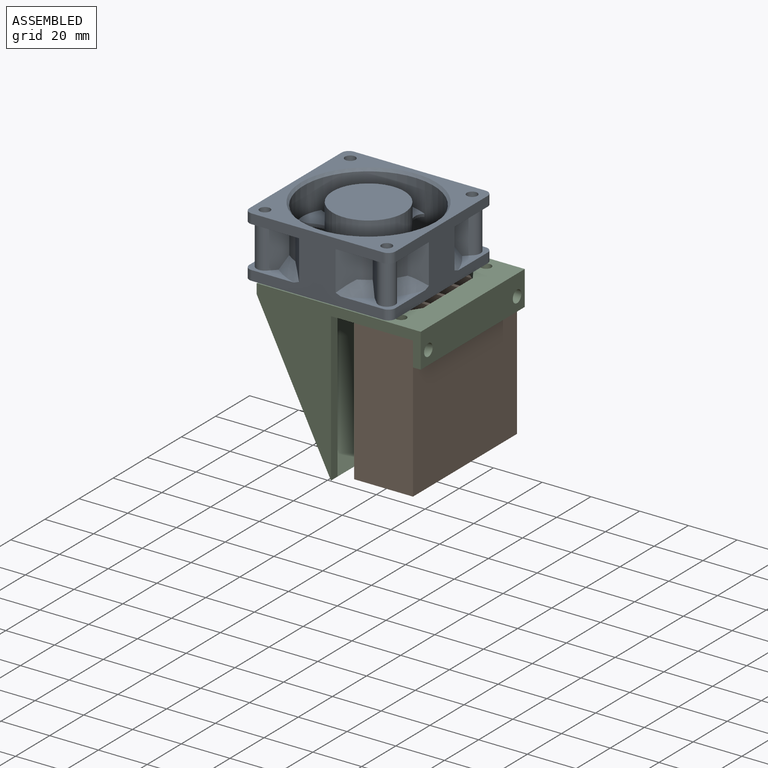
[diagram: assembled view]
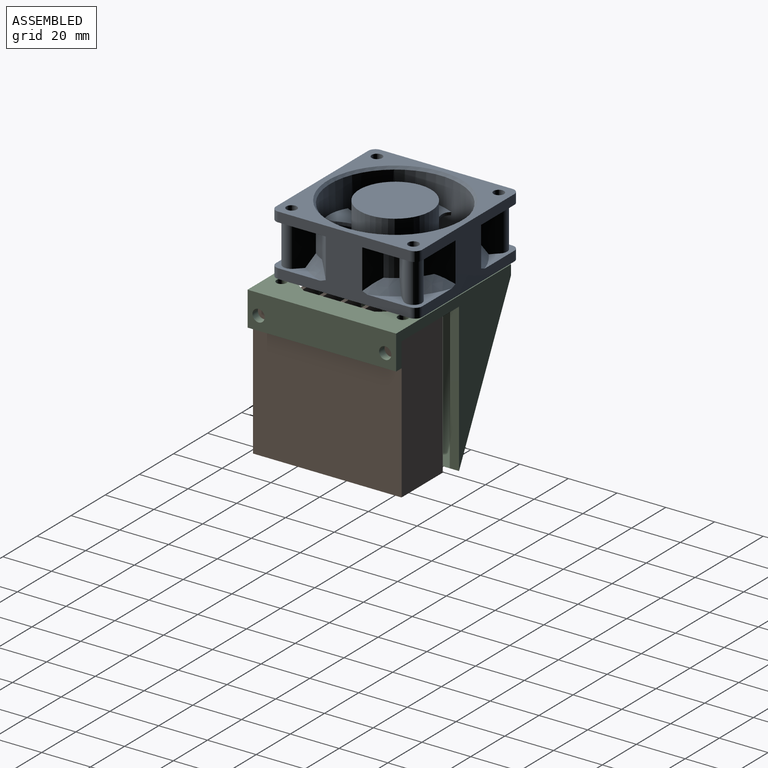
[diagram: assembled view, second angle]
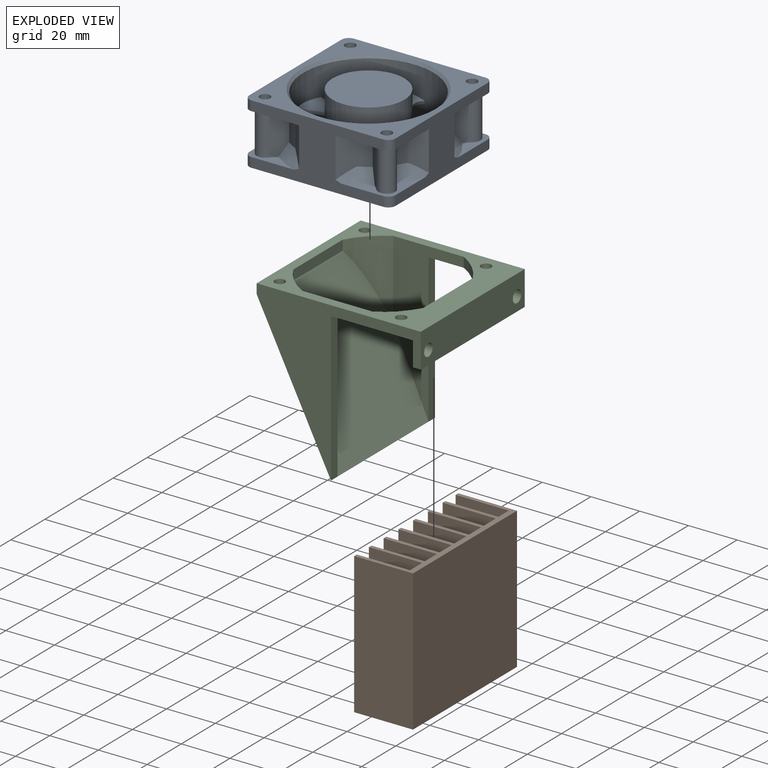
[diagram: exploded view]
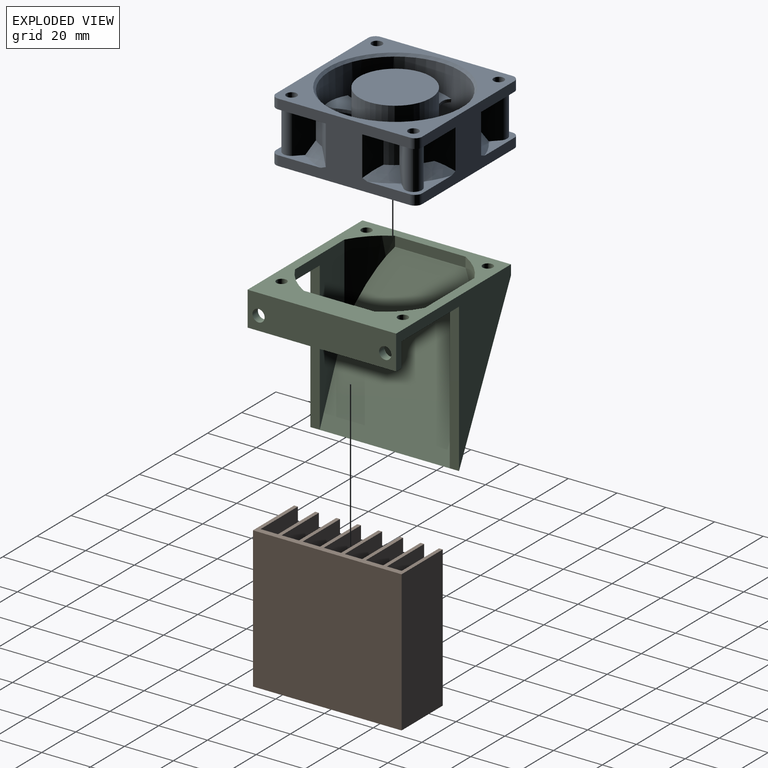
[diagram: exploded view, second angle]
ASSEMBLY  parts=3 mates=3
PART A: 138 faces, bbox 61.1x25x61.1 mm
  f0: plane 54x25mm, normal (0,0,1), area 630mm2, adj f57,f58,f59,f60,f61,f62,f65,f68
  f1: cylinder r=27.9mm len=11mm, axis (0,-1,0), area 59.1mm2, adj f4,f7,f53,f54
  f2: cylinder r=27.9mm len=11mm, axis (0,-1,0), area 59.1mm2, adj f27,f28,f55,f56
  f3: cylinder r=27.9mm len=11mm, axis (0,-1,0), area 59.1mm2, adj f11,f14,f57,f58
  f4: cone r=28.5mm half-angle=35deg, axis (0,1,0), area 6.6mm2, adj f1,f7,f54,f59
  f5: cone r=28.5mm half-angle=35deg, axis (0,1,0), area 6.6mm2, adj f6,f8,f59,f60
  f6: cylinder r=27.9mm len=11mm, axis (0,-1,0), area 59.1mm2, adj f5,f8,f60,f61
  f7: plane 17.03x5.45mm, normal (-0.71,0,-0.71), area 120.8mm2, adj f1,f4,f9,f53,f59,f62
  f8: plane 17.03x5.45mm, normal (0.71,0,0.71), area 120.8mm2, adj f5,f6,f9,f59,f61,f62
  f9: cylinder r=3.44mm len=17mm, axis (0,1,0), area 183.7mm2, adj f7,f8,f59,f62
  f10: cylinder r=27.9mm len=11mm, axis (0,-1,0), area 59.1mm2, adj f18,f21,f63,f64
  f11: cone r=28.5mm half-angle=35deg, axis (0,1,0), area 6.6mm2, adj f3,f14,f58,f65
  f12: cone r=28.5mm half-angle=35deg, axis (0,1,0), area 6.6mm2, adj f13,f15,f65,f66
  f13: cylinder r=27.9mm len=11mm, axis (0,-1,0), area 59.1mm2, adj f12,f15,f66,f67
  f14: plane 17.03x5.45mm, normal (-0.71,0,0.71), area 120.8mm2, adj f3,f11,f16,f57,f65,f68
  f15: plane 17.03x5.45mm, normal (0.71,0,-0.71), area 120.8mm2, adj f12,f13,f16,f65,f67,f68
  f16: cylinder r=3.44mm len=17mm, axis (0,1,0), area 183.7mm2, adj f14,f15,f65,f68
  f17: cylinder r=27.9mm len=11mm, axis (0,-1,0), area 59.1mm2, adj f25,f26,f70,f71
  f18: cone r=28.5mm half-angle=35deg, axis (0,1,0), area 6.6mm2, adj f10,f21,f64,f72
  f19: cone r=28.5mm half-angle=35deg, axis (0,1,0), area 6.6mm2, adj f20,f22,f72,f73
  f20: cylinder r=27.9mm len=11mm, axis (0,-1,0), area 59.1mm2, adj f19,f22,f73,f74
  f21: plane 17.03x5.45mm, normal (0.71,0,0.71), area 120.8mm2, adj f10,f18,f23,f63,f72,f75
  f22: plane 17.03x5.45mm, normal (-0.71,0,-0.71), area 120.8mm2, adj f19,f20,f23,f72,f74,f75
  f23: cylinder r=3.44mm len=17mm, axis (0,1,0), area 183.7mm2, adj f21,f22,f72,f75
  f24: cylinder r=3.44mm len=17mm, axis (0,1,0), area 183.7mm2, adj f25,f28,f69,f76
  f25: plane 17.03x5.45mm, normal (0.71,0,-0.71), area 120.8mm2, adj f17,f24,f26,f69,f70,f76
  f26: cone r=28.5mm half-angle=35deg, axis (0,1,0), area 6.6mm2, adj f17,f25,f71,f76
  f27: cone r=28.5mm half-angle=35deg, axis (0,1,0), area 6.6mm2, adj f2,f28,f55,f76
  f28: plane 17.03x5.45mm, normal (-0.71,0,0.71), area 120.8mm2, adj f2,f24,f27,f56,f69,f76
  f29: cylinder r=12.06mm len=4.83mm, axis (0.14,-0.99,0), area 6.5mm2, adj f30,f77,f78,f113
  f30: cylinder r=3.45mm len=2.85mm, axis (0.14,-0.99,0), area 3.8mm2, adj f29,f31,f77,f78
  f31: plane 2.18x1.31mm, normal (0.97,0.14,0.22), area 2.8mm2, adj f30,f32,f77,f78
  f32: cylinder r=24.64mm len=14.59mm, axis (0.14,-0.99,0), area 18.5mm2, adj f31,f33,f77,f78
  f33: cylinder r=5.38mm len=4.82mm, axis (0.14,-0.99,0), area 6.4mm2, adj f32,f34,f77,f78
  f34: cylinder r=14.18mm len=5.19mm, axis (0.14,-0.99,0), area 6.5mm2, adj f33,f77,f78,f113
  f35: cylinder r=12.06mm len=4.83mm, axis (0,-0.99,0.14), area 6.5mm2, adj f36,f79,f80,f113
  f36: cylinder r=3.45mm len=2.85mm, axis (0,-0.99,0.14), area 3.8mm2, adj f35,f37,f79,f80
  f37: plane 2.18x1.31mm, normal (-0.22,0.14,0.97), area 2.8mm2, adj f36,f38,f79,f80
  f38: cylinder r=24.64mm len=14.59mm, axis (0,-0.99,0.14), area 18.5mm2, adj f37,f39,f79,f80
  f39: cylinder r=5.38mm len=4.82mm, axis (0,-0.99,0.14), area 6.4mm2, adj f38,f40,f79,f80
  f40: cylinder r=14.18mm len=5.19mm, axis (0,-0.99,0.14), area 6.5mm2, adj f39,f79,f80,f113
  f41: cylinder r=12.06mm len=4.83mm, axis (0,-0.99,-0.14), area 6.5mm2, adj f42,f82,f83,f113
  f42: cylinder r=3.45mm len=2.85mm, axis (0,-0.99,-0.14), area 3.8mm2, adj f41,f43,f82,f83
  f43: plane 2.18x1.31mm, normal (0.22,0.14,-0.97), area 2.8mm2, adj f42,f44,f82,f83
  f44: cylinder r=24.64mm len=14.59mm, axis (0,-0.99,-0.14), area 18.5mm2, adj f43,f45,f82,f83
  f45: cylinder r=5.38mm len=4.82mm, axis (0,-0.99,-0.14), area 6.4mm2, adj f44,f46,f82,f83
  f46: cylinder r=14.18mm len=5.19mm, axis (0,-0.99,-0.14), area 6.5mm2, adj f45,f82,f83,f113
  f47: cylinder r=12.06mm len=4.83mm, axis (-0.14,-0.99,0), area 6.5mm2, adj f48,f84,f85,f113
  f48: cylinder r=3.45mm len=2.85mm, axis (-0.14,-0.99,0), area 3.8mm2, adj f47,f49,f84,f85
  f49: plane 2.18x1.31mm, normal (-0.97,0.14,-0.22), area 2.8mm2, adj f48,f50,f84,f85
  f50: cylinder r=24.64mm len=14.59mm, axis (-0.14,-0.99,0), area 18.5mm2, adj f49,f51,f84,f85
  f51: cylinder r=5.38mm len=4.82mm, axis (-0.14,-0.99,0), area 6.4mm2, adj f50,f52,f84,f85
  f52: cylinder r=14.18mm len=5.19mm, axis (-0.14,-0.99,0), area 6.5mm2, adj f51,f84,f85,f113
  f53: cone r=31.5mm half-angle=35deg, axis (0,-1,0), area 62.9mm2, adj f1,f7,f54,f62,f94
  f54: plane 16.18x5.11mm, normal (-0.71,0,0.71), area 99.3mm2, adj f1,f4,f53,f59,f94
  f55: plane 16.18x5.11mm, normal (-0.71,0,-0.71), area 99.3mm2, adj f2,f27,f56,f76,f94
  f56: cone r=31.5mm half-angle=35deg, axis (0,-1,0), area 62.9mm2, adj f2,f28,f55,f69,f94
  f57: cone r=31.5mm half-angle=35deg, axis (0,-1,0), area 62.9mm2, adj f0,f3,f14,f58,f68
  f58: plane 16.18x5.11mm, normal (0.71,0,0.71), area 99.3mm2, adj f0,f3,f11,f57,f65
  f59: plane 22.5x22.5mm, normal (0,-1,0), area 157.1mm2, adj f0,f4,f5,f7,f8,f9,f54,f60
  f60: plane 16.18x5.11mm, normal (-0.71,0,0.71), area 99.3mm2, adj f0,f5,f6,f59,f61
  f61: cone r=31.5mm half-angle=35deg, axis (0,-1,0), area 62.9mm2, adj f0,f6,f8,f60,f62
  f62: plane 20.4x20.4mm, normal (0,1,0), area 92.5mm2, adj f0,f7,f8,f9,f53,f61,f86,f94
  f63: cone r=31.5mm half-angle=35deg, axis (0,-1,0), area 62.9mm2, adj f10,f21,f64,f75,f98
  f64: plane 16.18x5.11mm, normal (0.71,0,-0.71), area 99.3mm2, adj f10,f18,f63,f72,f98
  f65: plane 22.5x22.5mm, normal (0,-1,0), area 157.1mm2, adj f0,f11,f12,f14,f15,f16,f58,f66
  f66: plane 16.18x5.11mm, normal (0.71,0,0.71), area 99.3mm2, adj f12,f13,f65,f67,f98
  f67: cone r=31.5mm half-angle=35deg, axis (0,-1,0), area 62.9mm2, adj f13,f15,f66,f68,f98
  f68: plane 20.4x20.4mm, normal (0,1,0), area 92.5mm2, adj f0,f14,f15,f16,f57,f67,f89,f98
  f69: plane 20.4x20.4mm, normal (0,1,0), area 92.5mm2, adj f24,f25,f28,f56,f70,f87,f94,f100
  f70: cone r=31.5mm half-angle=35deg, axis (0,-1,0), area 62.9mm2, adj f17,f25,f69,f71,f100
  f71: plane 16.18x5.11mm, normal (-0.71,0,-0.71), area 99.3mm2, adj f17,f26,f70,f76,f100
  f72: plane 22.5x22.5mm, normal (0,-1,0), area 157.1mm2, adj f18,f19,f21,f22,f23,f64,f73,f98
  f73: plane 16.18x5.11mm, normal (0.71,0,-0.71), area 99.3mm2, adj f19,f20,f72,f74,f100
  f74: cone r=31.5mm half-angle=35deg, axis (0,-1,0), area 62.9mm2, adj f20,f22,f73,f75,f100
  f75: plane 20.4x20.4mm, normal (0,1,0), area 92.5mm2, adj f21,f22,f23,f63,f74,f88,f98,f100
  f76: plane 22.5x22.5mm, normal (0,-1,0), area 157.1mm2, adj f24,f25,f26,f27,f28,f55,f71,f94
  f77: plane 15.01x11.31mm, normal (0.14,-0.99,0), area 132.3mm2, adj f29,f30,f31,f32,f33,f34,f113
  f78: plane 15.01x11.23mm, normal (-0.14,0.99,0), area 132.2mm2, adj f29,f30,f31,f32,f33,f34,f113
  f79: plane 15.02x11.31mm, normal (0,-0.99,0.14), area 132.3mm2, adj f35,f36,f37,f38,f39,f40,f113
  f80: plane 15.02x11.24mm, normal (0,0.99,-0.14), area 132.2mm2, adj f35,f36,f37,f38,f39,f40,f113
  f81: plane 29.5x29.5mm, normal (0,1,0), area 683.5mm2, adj f113
  f82: plane 15.02x11.24mm, normal (0,0.99,0.14), area 132.2mm2, adj f41,f42,f43,f44,f45,f46,f113
  f83: plane 15.02x11.31mm, normal (0,-0.99,-0.14), area 132.3mm2, adj f41,f42,f43,f44,f45,f46,f113
  f84: plane 15.02x11.31mm, normal (-0.14,-0.99,0), area 132.3mm2, adj f47,f48,f49,f50,f51,f52,f113
  f85: plane 15.02x11.24mm, normal (0.14,0.99,0), area 132.2mm2, adj f47,f48,f49,f50,f51,f52,f113
  f86: cylinder r=3mm len=4mm, axis (0,1,0), area 18.8mm2, adj f62,f94,f96,f114
  f87: cylinder r=3mm len=4mm, axis (0,1,0), area 18.8mm2, adj f69,f94,f100,f114
  f88: cylinder r=3mm len=4mm, axis (0,1,0), area 18.8mm2, adj f75,f98,f100,f114
  f89: cylinder r=3mm len=4mm, axis (0,1,0), area 18.8mm2, adj f0,f68,f98,f114
  f90: cylinder r=2.15mm len=25mm, axis (0,-1,0), area 337.7mm2, adj f114,f116
  f91: cylinder r=2.15mm len=25mm, axis (0,-1,0), area 337.7mm2, adj f114,f116
  f92: cylinder r=2.15mm len=25mm, axis (0,-1,0), area 337.7mm2, adj f114,f116
  f93: cylinder r=2.15mm len=25mm, axis (0,-1,0), area 337.7mm2, adj f114,f116
  f94: plane 54x25mm, normal (-1,0,0), area 688.8mm2, adj f53,f54,f55,f56,f59,f62,f69,f76
  f95: cylinder r=3mm len=4mm, axis (0,1,0), area 18.8mm2, adj f0,f59,f94,f116
  f96: plane 10.25x4mm, normal (0,0,1), area 38mm2, adj f62,f86,f114,f136
  f97: cylinder r=3mm len=4mm, axis (0,1,0), area 18.8mm2, adj f0,f65,f98,f116
  f98: plane 54x25mm, normal (1,0,0), area 688.8mm2, adj f63,f64,f65,f66,f67,f68,f72,f75
  f99: cylinder r=3mm len=4mm, axis (0,1,0), area 18.8mm2, adj f72,f98,f100,f116
  f100: plane 54x25mm, normal (0,0,-1), area 688.8mm2, adj f69,f70,f71,f72,f73,f74,f75,f76
  f101: cylinder r=3mm len=4mm, axis (0,1,0), area 18.8mm2, adj f76,f94,f100,f116
  f102: plane 11.46x11.46mm, normal (0.71,0,0.71), area 28.8mm2, adj f103,f114,f119,f131,f134
  f103: cylinder r=15.24mm len=15.01mm, axis (0,1,0), area 43.2mm2, adj f102,f104,f114,f131
  f104: plane 11.69x11.69mm, normal (-0.71,0,0.71), area 28.3mm2, adj f103,f114,f122,f131,f134
  f105: plane 11.46x11.46mm, normal (0.71,0,-0.71), area 28.8mm2, adj f106,f114,f123,f131,f134
  f106: cylinder r=15.24mm len=15.01mm, axis (0,1,0), area 43.2mm2, adj f105,f107,f114,f131
  f107: plane 11.69x11.69mm, normal (0.71,0,0.71), area 28.3mm2, adj f106,f114,f126,f131,f134
  f108: plane 11.46x11.46mm, normal (-0.71,0,-0.71), area 28.8mm2, adj f109,f114,f127,f131,f134
  f109: cylinder r=15.24mm len=15.01mm, axis (0,1,0), area 43.2mm2, adj f108,f110,f114,f131
  f110: plane 11.69x11.69mm, normal (0.71,0,-0.71), area 28.3mm2, adj f109,f114,f130,f131,f134
  f111: cylinder r=15.24mm len=14.23mm, axis (0,1,0), area 37.3mm2, adj f112,f114,f115,f131
  f112: plane 11.27x11.27mm, normal (-0.71,0,-0.71), area 27.9mm2, adj f111,f114,f118,f131,f134
  f113: cylinder r=14.75mm len=29.5mm, axis (0,1,0), area 2069.9mm2, adj f29,f34,f35,f40,f41,f46,f47,f52
  f114: plane 60x60mm, normal (0,-1,0), area 1818.1mm2, adj f0,f86,f87,f88,f89,f90,f91,f92
  f115: plane 11.46x11.46mm, normal (-0.71,0,0.71), area 28.8mm2, adj f111,f114,f131,f132,f134
  f116: plane 60x60mm, normal (0,1,0), area 1141mm2, adj f0,f90,f91,f92,f93,f94,f95,f97
  f117: plane 14.74x3.8mm, normal (0.42,-0.91,0), area 20.8mm2, adj f114,f118,f134
  f118: cone r=30.5mm half-angle=65deg, axis (0,-1,0), area 57.9mm2, adj f112,f114,f117,f134
  f119: plane 11.46x1.81mm, normal (0,-0.91,-0.42), area 8.1mm2, adj f102,f114,f134
  f120: plane 14.74x3.8mm, normal (0,-0.91,-0.42), area 20.8mm2, adj f114,f121,f134
  f121: cone r=30.5mm half-angle=65deg, axis (0,-1,0), area 63.3mm2, adj f114,f120,f122,f134
  f122: plane 3.82x3.11mm, normal (-0.42,-0.91,0), area 5.6mm2, adj f104,f114,f121,f134
  f123: plane 11.46x1.81mm, normal (-0.42,-0.91,0), area 8.1mm2, adj f105,f114,f134
  f124: plane 14.74x3.8mm, normal (-0.42,-0.91,0), area 20.8mm2, adj f114,f125,f134
  f125: cone r=30.5mm half-angle=65deg, axis (0,-1,0), area 63.3mm2, adj f114,f124,f126,f134
  f126: plane 3.82x3.11mm, normal (0,-0.91,0.42), area 5.6mm2, adj f107,f114,f125,f134
  f127: plane 11.46x1.81mm, normal (0,-0.91,0.42), area 8.1mm2, adj f108,f114,f134
  f128: plane 14.74x3.8mm, normal (0,-0.91,0.42), area 20.8mm2, adj f114,f129,f134
  f129: cone r=30.5mm half-angle=65deg, axis (0,-1,0), area 63.3mm2, adj f114,f128,f130,f134
  f130: plane 3.82x3.11mm, normal (0.42,-0.91,0), area 5.6mm2, adj f110,f114,f129,f134
  f131: plane 49.79x49.79mm, normal (0,1,0), area 184.6mm2, adj f102,f103,f104,f105,f106,f107,f108,f109
  f132: plane 11.46x1.81mm, normal (0.42,-0.91,0), area 8.1mm2, adj f114,f115,f134
  f133: cone r=27.6mm half-angle=40deg, axis (0,1,0), area 238.8mm2, adj f116,f134
  f134: cylinder r=26.7mm len=53.4mm, axis (0,1,0), area 3842.4mm2, adj f102,f104,f105,f107,f108,f110,f112,f115
  f135: cylinder r=2.86mm len=4mm, axis (0,0,1), area 0.1mm2, adj f0,f62,f114,f137
  f136: cylinder r=2.86mm len=4mm, axis (0,0,1), area 0.1mm2, adj f62,f96,f114,f137
  f137: plane 5.73x4mm, normal (0,0,1), area 20.8mm2, adj f62,f114,f135,f136
PART B: 34 faces, bbox 61x57.9x24.1 mm
  f0: plane 57.91x21.84mm, normal (1,0,0), area 1265mm2, adj f1,f3,f4,f30
  f1: plane 60.96x24.13mm, normal (0,1,0), area 405.7mm2, adj f0,f2,f4,f5,f6,f7,f8,f9
  f2: plane 57.91x24.13mm, normal (-1,0,0), area 1397.4mm2, adj f1,f3,f4,f5
  f3: plane 60.96x24.13mm, normal (0,-1,0), area 405.7mm2, adj f0,f2,f4,f5,f6,f7,f8,f9
  f4: plane 57.91x1.52mm, normal (0,0,1), area 88.3mm2, adj f0,f1,f2,f3
  f5: plane 60.96x57.91mm, normal (0,0,-1), area 3530.3mm2, adj f1,f2,f3,f19
  f6: plane 57.91x21.84mm, normal (-1,0,0), area 1265mm2, adj f1,f3,f8,f29
  f7: plane 57.91x21.84mm, normal (1,0,0), area 1265mm2, adj f1,f3,f8,f9
  f8: plane 57.91x1.52mm, normal (0,0,1), area 88.3mm2, adj f1,f3,f6,f7
  f9: plane 57.91x7.11mm, normal (0,0,1), area 411.9mm2, adj f1,f3,f7,f28
  f10: plane 57.91x21.84mm, normal (-1,0,0), area 1265mm2, adj f1,f3,f12,f25
  f11: plane 57.91x21.84mm, normal (1,0,0), area 1265mm2, adj f1,f3,f12,f13
  f12: plane 57.91x1.52mm, normal (0,0,1), area 88.3mm2, adj f1,f3,f10,f11
  f13: plane 57.91x7.11mm, normal (0,0,1), area 411.9mm2, adj f1,f3,f11,f24
  f14: plane 57.91x21.84mm, normal (-1,0,0), area 1265mm2, adj f1,f3,f16,f21
  f15: plane 57.91x21.84mm, normal (1,0,0), area 1265mm2, adj f1,f3,f16,f17
  f16: plane 57.91x1.52mm, normal (0,0,1), area 88.3mm2, adj f1,f3,f14,f15
  f17: plane 57.91x6.1mm, normal (0,0,1), area 353mm2, adj f1,f3,f15,f20
  f18: plane 57.91x1.52mm, normal (0,0,1), area 88.3mm2, adj f1,f3,f19,f20
  f19: plane 57.91x24.13mm, normal (1,0,0), area 1397.4mm2, adj f1,f3,f5,f18
  f20: plane 57.91x21.84mm, normal (-1,0,0), area 1265mm2, adj f1,f3,f17,f18
  f21: plane 57.91x7.11mm, normal (0,0,1), area 411.9mm2, adj f1,f3,f14,f23
  f22: plane 57.91x1.52mm, normal (0,0,1), area 88.3mm2, adj f1,f3,f23,f24
  f23: plane 57.91x21.84mm, normal (1,0,0), area 1265mm2, adj f1,f3,f21,f22
  f24: plane 57.91x21.84mm, normal (-1,0,0), area 1265mm2, adj f1,f3,f13,f22
  f25: plane 57.91x7.11mm, normal (0,0,1), area 411.9mm2, adj f1,f3,f10,f27
  f26: plane 57.91x1.52mm, normal (0,0,1), area 88.3mm2, adj f1,f3,f27,f28
  f27: plane 57.91x21.84mm, normal (1,0,0), area 1265mm2, adj f1,f3,f25,f26
  f28: plane 57.91x21.84mm, normal (-1,0,0), area 1265mm2, adj f1,f3,f9,f26
  f29: plane 57.91x7.11mm, normal (0,0,1), area 411.9mm2, adj f1,f3,f6,f32
  f30: plane 57.91x7.11mm, normal (0,0,1), area 411.9mm2, adj f0,f1,f3,f31
  f31: plane 57.91x21.84mm, normal (-1,0,0), area 1265mm2, adj f1,f3,f30,f33
  f32: plane 57.91x21.84mm, normal (1,0,0), area 1265mm2, adj f1,f3,f29,f33
  f33: plane 57.91x1.52mm, normal (0,0,1), area 88.3mm2, adj f1,f3,f31,f32
PART C: 26 faces, bbox 69.1x62.7x66.8 mm
  f0: plane 60.96x3.81mm, normal (1,0,0), area 232.3mm2, adj f1,f2,f11,f14
  f1: plane 60.96x33.66mm, normal (0,0,-1), area 721.4mm2, adj f0,f2,f3,f6,f7,f11,f12,f13
  f2: plane 67.31x65.02mm, normal (0,-1,0), area 1234.3mm2, adj f0,f1,f4,f5,f14,f17,f18,f19
  f3: plane 67.31x65.02mm, normal (0,1,0), area 1234.3mm2, adj f1,f4,f5,f14,f15,f17,f18,f19
  f4: plane 67.31x60.96mm, normal (0,0,1), area 1443mm2, adj f2,f3,f5,f6,f7,f8,f9,f10
  f5: plane 60.96x4.06mm, normal (-1,0,0), area 247.7mm2, adj f2,f3,f4,f14
  f6: cylinder r=30.48mm len=12.19mm, axis (0,0,1), area 71mm2, adj f1,f4,f7,f13
  f7: plane 65.02x28.96mm, normal (0,-1,0), area 760.7mm2, adj f1,f4,f6,f8,f15,f16
  f8: cylinder r=30.99mm len=31.93mm, axis (0,0,1), area 291.5mm2, adj f4,f7,f9,f16
  f9: plane 28.96x4.06mm, normal (1,0,0), area 117.7mm2, adj f4,f8,f10,f16
  f10: cylinder r=30.48mm len=31.93mm, axis (0,0,1), area 291.2mm2, adj f4,f9,f11,f16
  f11: plane 65.02x28.96mm, normal (0,1,0), area 760.7mm2, adj f0,f1,f4,f10,f12,f16
  f12: cylinder r=30.48mm len=12.19mm, axis (0,0,1), area 71mm2, adj f1,f4,f11,f13
  f13: plane 28.96x4.06mm, normal (-1,0,0), area 117.7mm2, adj f1,f4,f6,f12
  f14: plane 62.72x62.72mm, normal (-0.89,0,-0.45), area 4093.1mm2, adj f0,f2,f3,f5,f15,f16,f20,f21
  f15: plane 60.96x3.81mm, normal (1,0,0), area 232.3mm2, adj f1,f3,f7,f14
  f16: plane 60.96x53.34mm, normal (0.92,0,0.4), area 3249.4mm2, adj f7,f8,f9,f10,f11,f14
  f17: plane 60.96x14.06mm, normal (1,0,0), area 818.1mm2, adj f2,f3,f4,f19,f24,f25
  f18: plane 60.96x10mm, normal (-1,0,0), area 570.3mm2, adj f1,f2,f3,f19,f24,f25
  f19: plane 60.96x3.18mm, normal (0,0,-1), area 193.5mm2, adj f2,f3,f17,f18
  f20: cylinder r=2.1mm len=19.43mm, axis (0,0,1), area 200.7mm2, adj f4,f14
  f21: cylinder r=2.1mm len=19.43mm, axis (0,0,1), area 200.7mm2, adj f4,f14
  f22: cylinder r=2.1mm len=4.19mm, axis (0,0,1), area 53.5mm2, adj f1,f4
  f23: cylinder r=2.1mm len=4.19mm, axis (0,0,1), area 53.5mm2, adj f1,f4
  f24: cylinder r=2.5mm len=5mm, axis (-1,0,0), area 49.9mm2, adj f17,f18
  f25: cylinder r=2.5mm len=5mm, axis (-1,0,0), area 49.9mm2, adj f17,f18
PLACE A rot(axis=(0.58,0.58,0.58),120deg) t=(-59.92,-18.91,27.84)mm
PLACE B rot(axis=(-0.58,-0.58,0.58),120deg) t=(-20.27,53.88,2.67)mm
PLACE C rot(axis=(0.53,-0.72,-0.46),0deg) t=(-84.41,-21.61,3.26)mm
MATE planar B.f3 <-> C.f1  axis (0,0,1) through (-32.34,-49.5,23.77)mm
MATE planar B.f5 <-> C.f18  axis (1,0,0) through (-20.27,-19.02,-5.18)mm
MATE planar A.f114 <-> C.f23  axis (0,0,-1) through (-32.92,11.09,27.84)mm
